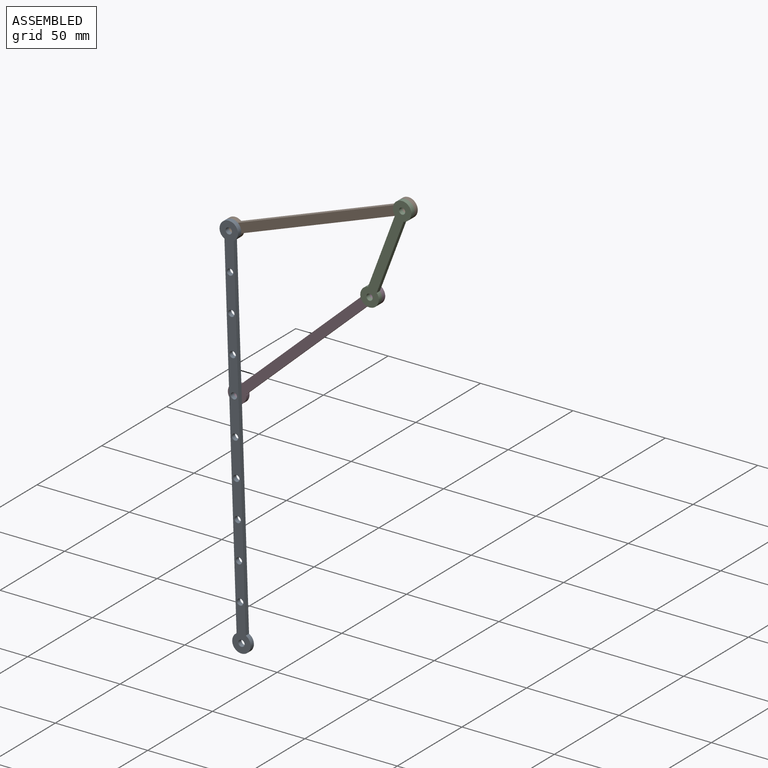
[diagram: assembled view]
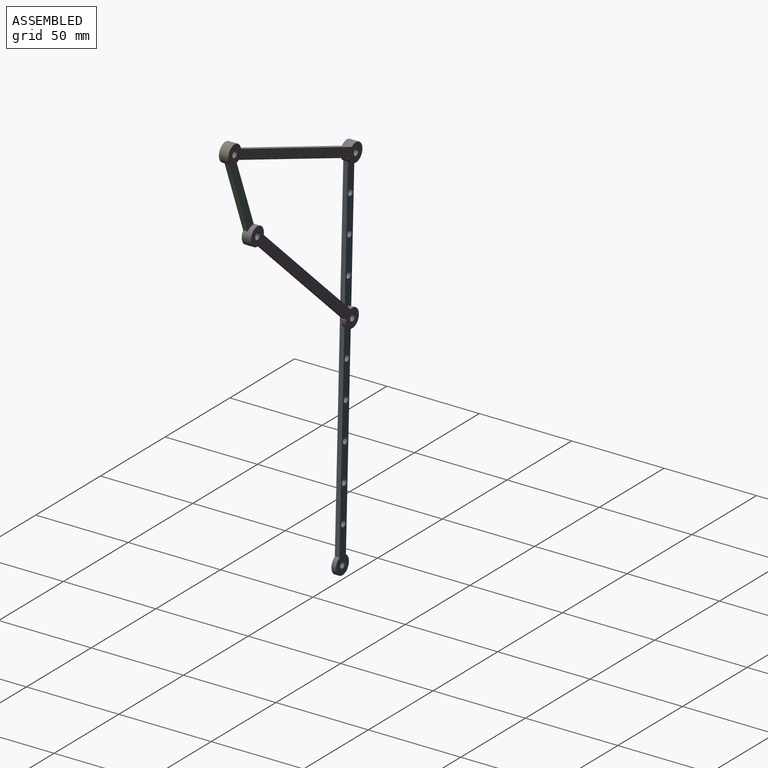
[diagram: assembled view, second angle]
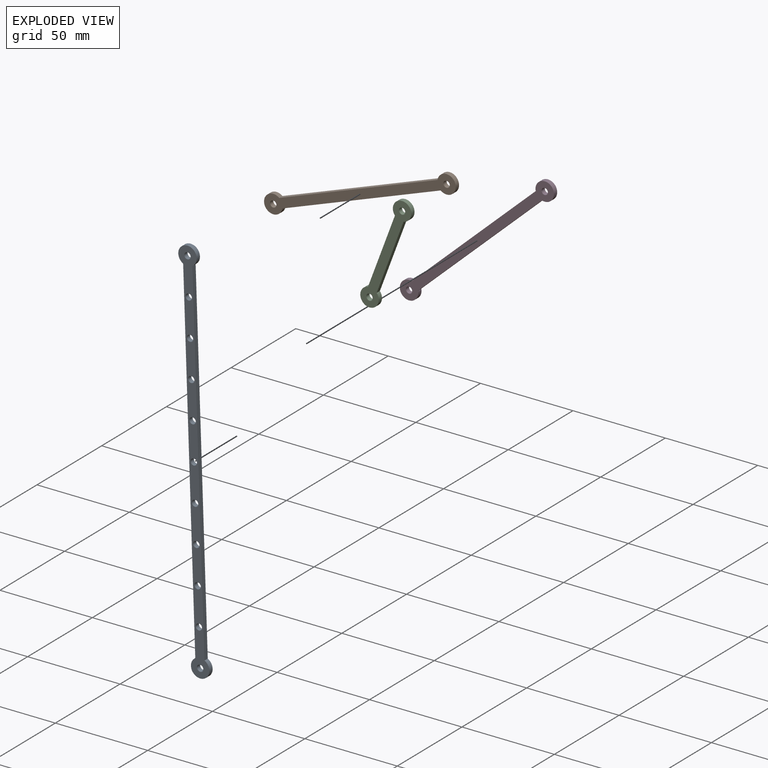
[diagram: exploded view]
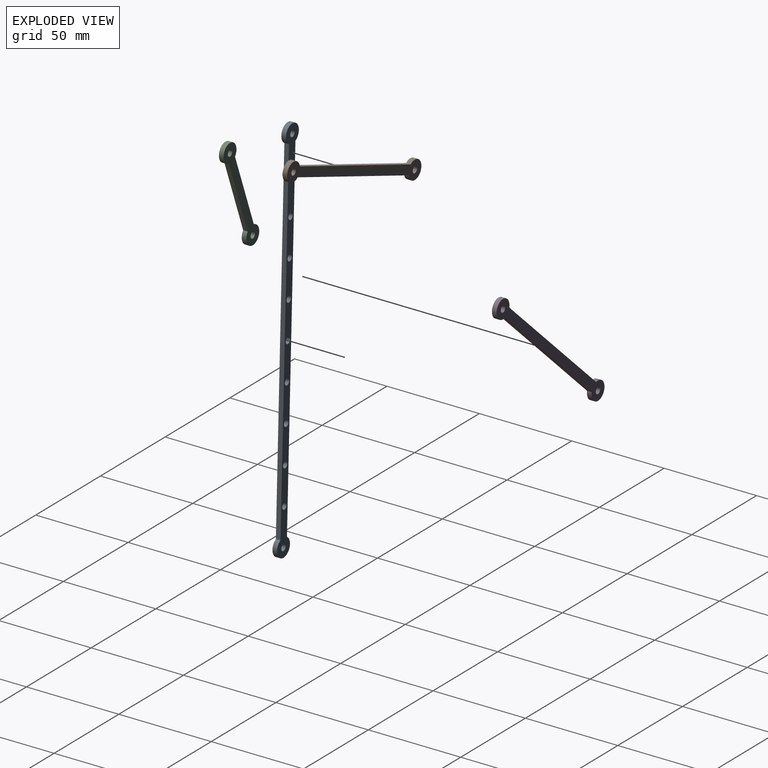
[diagram: exploded view, second angle]
ASSEMBLY  parts=4 mates=4
PART A: 17 faces, bbox 210x2.5x10 mm
  f0: plane 191.34x2.5mm, normal (0,0,1), area 478.3mm2, adj f1,f3,f4,f5
  f1: cylinder r=5mm len=10mm, axis (0,1,0), area 65.4mm2, adj f0,f2,f4,f5
  f2: plane 191.34x2.5mm, normal (0,0,-1), area 478.3mm2, adj f1,f3,f4,f5
  f3: cylinder r=5mm len=10mm, axis (0,1,0), area 65.4mm2, adj f0,f2,f4,f5
  f4: plane 210x10mm, normal (0,-1,0), area 1009.4mm2, adj f0,f1,f2,f3,f6,f7,f8,f9
  f5: plane 210x10mm, normal (0,1,0), area 1009.4mm2, adj f0,f1,f2,f3,f6,f7,f8,f9
  f6: cylinder r=1.7mm len=3.4mm, axis (0,-1,0), area 26.7mm2, adj f4,f5
  f7: cylinder r=1.7mm len=3.4mm, axis (0,-1,0), area 26.7mm2, adj f4,f5
  f8: cylinder r=1.7mm len=3.4mm, axis (0,1,0), area 26.7mm2, adj f4,f5
  f9: cylinder r=1.7mm len=3.4mm, axis (0,1,0), area 26.7mm2, adj f4,f5
  f10: cylinder r=1.7mm len=3.4mm, axis (0,1,0), area 26.7mm2, adj f4,f5
  f11: cylinder r=1.7mm len=3.4mm, axis (0,1,0), area 26.7mm2, adj f4,f5
  f12: cylinder r=1.7mm len=3.4mm, axis (0,1,0), area 26.7mm2, adj f4,f5
  f13: cylinder r=1.7mm len=3.4mm, axis (0,1,0), area 26.7mm2, adj f4,f5
  f14: cylinder r=1.7mm len=3.4mm, axis (0,1,0), area 26.7mm2, adj f4,f5
  f15: cylinder r=1.7mm len=3.4mm, axis (0,1,0), area 26.7mm2, adj f4,f5
  f16: cylinder r=1.7mm len=3.4mm, axis (0,1,0), area 26.7mm2, adj f4,f5
PART B: 8 faces, bbox 110x2.5x10 mm
  f0: plane 91.34x2.5mm, normal (0,0,1), area 228.3mm2, adj f1,f3,f4,f5
  f1: cylinder r=5mm len=10mm, axis (0,1,0), area 65.4mm2, adj f0,f2,f4,f5
  f2: plane 91.34x2.5mm, normal (0,0,-1), area 228.3mm2, adj f1,f3,f4,f5
  f3: cylinder r=5mm len=10mm, axis (0,1,0), area 65.4mm2, adj f0,f2,f4,f5
  f4: plane 110x10mm, normal (0,-1,0), area 591.1mm2, adj f0,f1,f2,f3,f6,f7
  f5: plane 110x10mm, normal (0,1,0), area 591.1mm2, adj f0,f1,f2,f3,f6,f7
  f6: cylinder r=1.7mm len=3.4mm, axis (0,-1,0), area 26.7mm2, adj f4,f5
  f7: cylinder r=1.7mm len=3.4mm, axis (0,-1,0), area 26.7mm2, adj f4,f5
PART C: 8 faces, bbox 60x2.5x10 mm
  f0: plane 41.34x2.5mm, normal (0,0,1), area 103.3mm2, adj f1,f3,f4,f5
  f1: cylinder r=5mm len=10mm, axis (0,1,0), area 65.4mm2, adj f0,f2,f4,f5
  f2: plane 41.34x2.5mm, normal (0,0,-1), area 103.3mm2, adj f1,f3,f4,f5
  f3: cylinder r=5mm len=10mm, axis (0,1,0), area 65.4mm2, adj f0,f2,f4,f5
  f4: plane 60x10mm, normal (0,-1,0), area 341.1mm2, adj f0,f1,f2,f3,f6,f7
  f5: plane 60x10mm, normal (0,1,0), area 341.1mm2, adj f0,f1,f2,f3,f6,f7
  f6: cylinder r=1.7mm len=3.4mm, axis (0,-1,0), area 26.7mm2, adj f4,f5
  f7: cylinder r=1.7mm len=3.4mm, axis (0,-1,0), area 26.7mm2, adj f4,f5
PART D: same geometry as B
PLACE A rot(axis=(0,1,0),88deg) t=(-76.16,2.5,12.06)mm
PLACE B rot(axis=(0,1,0),159.7deg) t=(17.61,5,46.8)mm
PLACE C rot(axis=(0,1,0),110.6deg) t=(17.61,2.5,46.8)mm
PLACE D rot(axis=(0,1,0),137.2deg) t=(0,5,0)mm
MATE revolute A.f1 <-> B.f3  axis (0,1,0) through (-76.16,2.5,12.06)mm
MATE revolute D.f3 <-> A.f13  axis (0,-1,0) through (-73.42,2.5,-67.9)mm
MATE revolute B.f1 <-> C.f1  axis (0,-1,0) through (17.61,2.5,46.8)mm
MATE revolute C.f3 <-> D.f1  axis (0,1,0) through (0,2.5,0)mm
